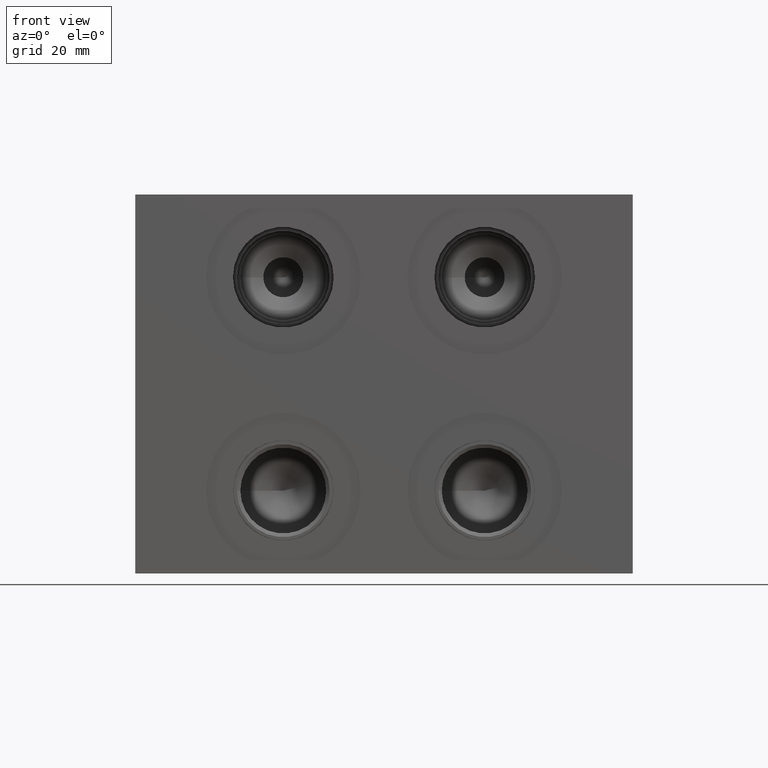
[diagram: clean part render]
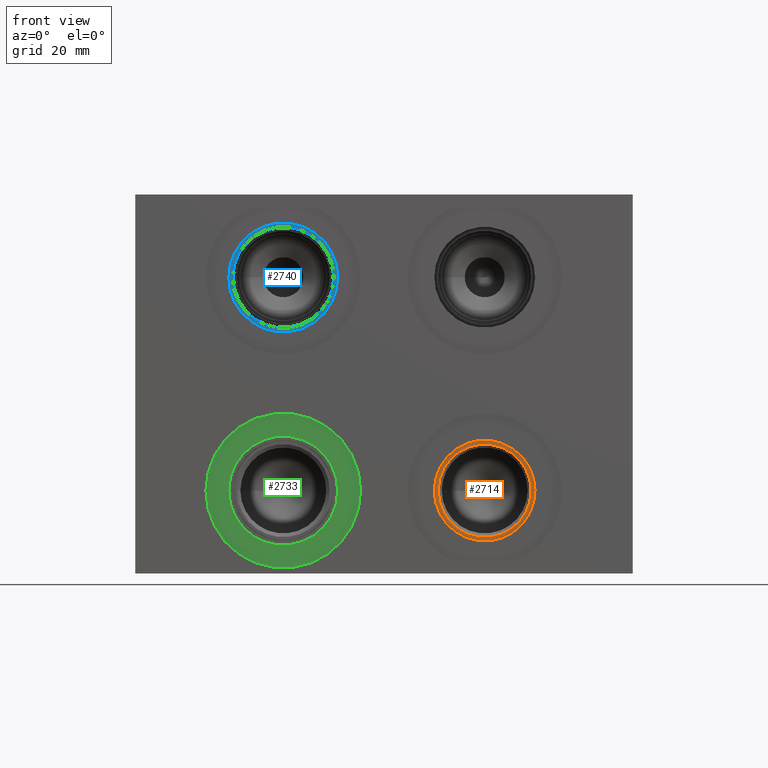
[diagram: same view with three faces highlighted in distinct colors, each labeled with its STEP entity id]
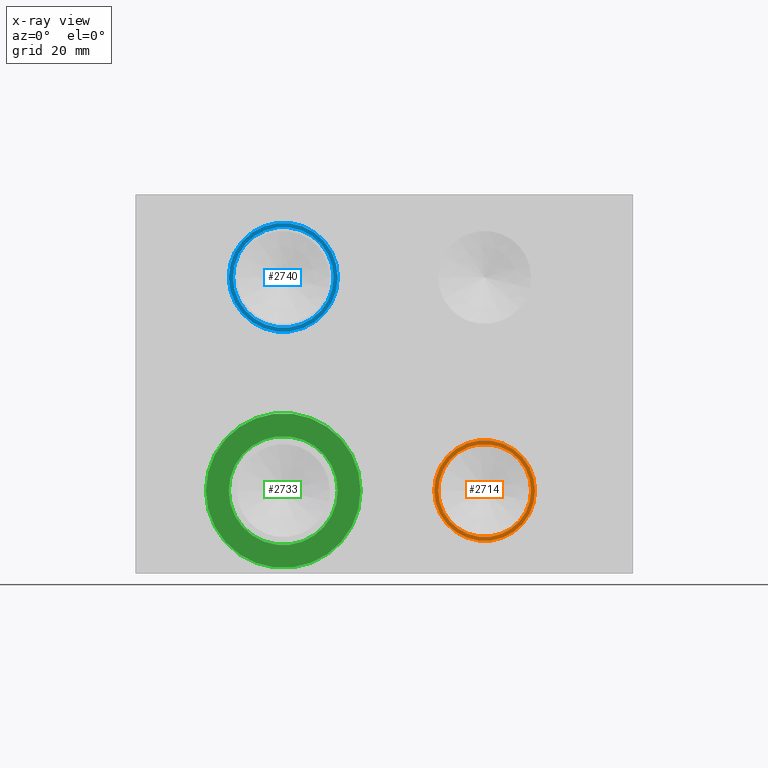
[diagram: x-ray of the same camera — body ghosted, the three highlighted faces saturated]
A machine part, front view with three faces highlighted in distinct colors.
The next image is the same camera in x-ray (body ghosted, the three faces saturated) — at least one of them is partly hidden behind the body in this view.
Their STEP definitions:

[orange] entity #2714 — the highlighted planar face has unit normal (0, -1, 0).
#32=FACE_BOUND('',#440,.T.);
#98=PLANE('',#2996);
#264=FACE_OUTER_BOUND('',#439,.T.);
#439=EDGE_LOOP('',(#2110,#2111));
#440=EDGE_LOOP('',(#2112));
#947=CIRCLE('',#2997,13.49375);
#948=CIRCLE('',#2998,13.49375);
#949=CIRCLE('',#2999,12.4587);
#1227=VERTEX_POINT('',#4580);
#1228=VERTEX_POINT('',#4581);
#1229=VERTEX_POINT('',#4584);
#1573=EDGE_CURVE('',#1227,#1228,#947,.T.);
#1574=EDGE_CURVE('',#1228,#1227,#948,.T.);
#1575=EDGE_CURVE('',#1229,#1229,#949,.T.);
#2110=ORIENTED_EDGE('',*,*,#1573,.T.);
#2111=ORIENTED_EDGE('',*,*,#1574,.T.);
#2112=ORIENTED_EDGE('',*,*,#1575,.F.);
#2714=ADVANCED_FACE('',(#264,#32),#98,.T.);
#2996=AXIS2_PLACEMENT_3D('',#4579,#3649,#3650);
#2997=AXIS2_PLACEMENT_3D('',#4582,#3651,#3652);
#2998=AXIS2_PLACEMENT_3D('',#4583,#3653,#3654);
#2999=AXIS2_PLACEMENT_3D('',#4585,#3655,#3656);
#3649=DIRECTION('center_axis',(0.,-1.,0.));
#3650=DIRECTION('ref_axis',(1.,0.,0.));
#3651=DIRECTION('center_axis',(0.,-1.,0.));
#3652=DIRECTION('ref_axis',(1.,0.,0.));
#3653=DIRECTION('center_axis',(0.,-1.,0.));
#3654=DIRECTION('ref_axis',(1.,0.,0.));
#3655=DIRECTION('center_axis',(0.,-1.,0.));
#3656=DIRECTION('ref_axis',(1.,0.,0.));
#4579=CARTESIAN_POINT('Origin',(93.6498,19.8374,22.225));
#4580=CARTESIAN_POINT('',(107.14355,19.8374,22.225));
#4581=CARTESIAN_POINT('',(80.15605,19.8374,22.225));
#4582=CARTESIAN_POINT('Origin',(93.6498,19.8374,22.225));
#4583=CARTESIAN_POINT('Origin',(93.6498,19.8374,22.225));
#4584=CARTESIAN_POINT('',(81.1911,19.8374,22.225));
#4585=CARTESIAN_POINT('Origin',(93.6498,19.8374,22.225));

[blue] entity #2740 — the highlighted planar face has unit normal (0, -1, 0).
#38=FACE_BOUND('',#472,.T.);
#104=PLANE('',#3064);
#290=FACE_OUTER_BOUND('',#471,.T.);
#471=EDGE_LOOP('',(#2228,#2229));
#472=EDGE_LOOP('',(#2230));
#968=CIRCLE('',#3031,13.5001);
#987=CIRCLE('',#3062,14.605);
#988=CIRCLE('',#3063,14.605);
#1250=VERTEX_POINT('',#4648);
#1269=VERTEX_POINT('',#4706);
#1270=VERTEX_POINT('',#4708);
#1605=EDGE_CURVE('',#1250,#1250,#968,.T.);
#1633=EDGE_CURVE('',#1270,#1269,#987,.T.);
#1634=EDGE_CURVE('',#1269,#1270,#988,.T.);
#2228=ORIENTED_EDGE('',*,*,#1633,.T.);
#2229=ORIENTED_EDGE('',*,*,#1634,.T.);
#2230=ORIENTED_EDGE('',*,*,#1605,.T.);
#2740=ADVANCED_FACE('',(#290,#38),#104,.T.);
#3031=AXIS2_PLACEMENT_3D('',#4649,#3730,#3731);
#3062=AXIS2_PLACEMENT_3D('',#4709,#3801,#3802);
#3063=AXIS2_PLACEMENT_3D('',#4710,#3803,#3804);
#3064=AXIS2_PLACEMENT_3D('',#4711,#3805,#3806);
#3730=DIRECTION('center_axis',(0.,1.,0.));
#3731=DIRECTION('ref_axis',(1.,0.,0.));
#3801=DIRECTION('center_axis',(0.,-1.,0.));
#3802=DIRECTION('ref_axis',(1.,0.,0.));
#3803=DIRECTION('center_axis',(0.,-1.,0.));
#3804=DIRECTION('ref_axis',(1.,0.,0.));
#3805=DIRECTION('center_axis',(0.,-1.,0.));
#3806=DIRECTION('ref_axis',(1.,0.,0.));
#4648=CARTESIAN_POINT('',(26.1747,4.0894,79.375));
#4649=CARTESIAN_POINT('Origin',(39.6748,4.0894,79.375));
#4706=CARTESIAN_POINT('',(25.0698,4.0894,79.375));
#4708=CARTESIAN_POINT('',(54.2798,4.0894,79.375));
#4709=CARTESIAN_POINT('Origin',(39.6748,4.0894,79.375));
#4710=CARTESIAN_POINT('Origin',(39.6748,4.0894,79.375));
#4711=CARTESIAN_POINT('Origin',(39.6748,4.0894,79.375));

[green] entity #2733 — the highlighted planar face has unit normal (0, -1, 0).
#35=FACE_BOUND('',#462,.T.);
#101=PLANE('',#3043);
#283=FACE_OUTER_BOUND('',#461,.T.);
#461=EDGE_LOOP('',(#2197,#2198));
#462=EDGE_LOOP('',(#2199));
#975=CIRCLE('',#3044,20.7264);
#976=CIRCLE('',#3045,20.7264);
#977=CIRCLE('',#3046,14.605);
#1257=VERTEX_POINT('',#4673);
#1258=VERTEX_POINT('',#4674);
#1259=VERTEX_POINT('',#4677);
#1617=EDGE_CURVE('',#1257,#1258,#975,.T.);
#1618=EDGE_CURVE('',#1258,#1257,#976,.T.);
#1619=EDGE_CURVE('',#1259,#1259,#977,.T.);
#2197=ORIENTED_EDGE('',*,*,#1617,.T.);
#2198=ORIENTED_EDGE('',*,*,#1618,.T.);
#2199=ORIENTED_EDGE('',*,*,#1619,.F.);
#2733=ADVANCED_FACE('',(#283,#35),#101,.T.);
#3043=AXIS2_PLACEMENT_3D('',#4672,#3759,#3760);
#3044=AXIS2_PLACEMENT_3D('',#4675,#3761,#3762);
#3045=AXIS2_PLACEMENT_3D('',#4676,#3763,#3764);
#3046=AXIS2_PLACEMENT_3D('',#4678,#3765,#3766);
#3759=DIRECTION('center_axis',(0.,-1.,0.));
#3760=DIRECTION('ref_axis',(1.,0.,0.));
#3761=DIRECTION('center_axis',(0.,-1.,0.));
#3762=DIRECTION('ref_axis',(1.,0.,0.));
#3763=DIRECTION('center_axis',(0.,-1.,0.));
#3764=DIRECTION('ref_axis',(1.,0.,0.));
#3765=DIRECTION('center_axis',(0.,-1.,0.));
#3766=DIRECTION('ref_axis',(1.,0.,0.));
#4672=CARTESIAN_POINT('Origin',(39.6748,0.762,22.225));
#4673=CARTESIAN_POINT('',(60.4012,0.762,22.225));
#4674=CARTESIAN_POINT('',(18.9484,0.762,22.225));
#4675=CARTESIAN_POINT('Origin',(39.6748,0.762,22.225));
#4676=CARTESIAN_POINT('Origin',(39.6748,0.762,22.225));
#4677=CARTESIAN_POINT('',(25.0698,0.762,22.225));
#4678=CARTESIAN_POINT('Origin',(39.6748,0.762,22.225));